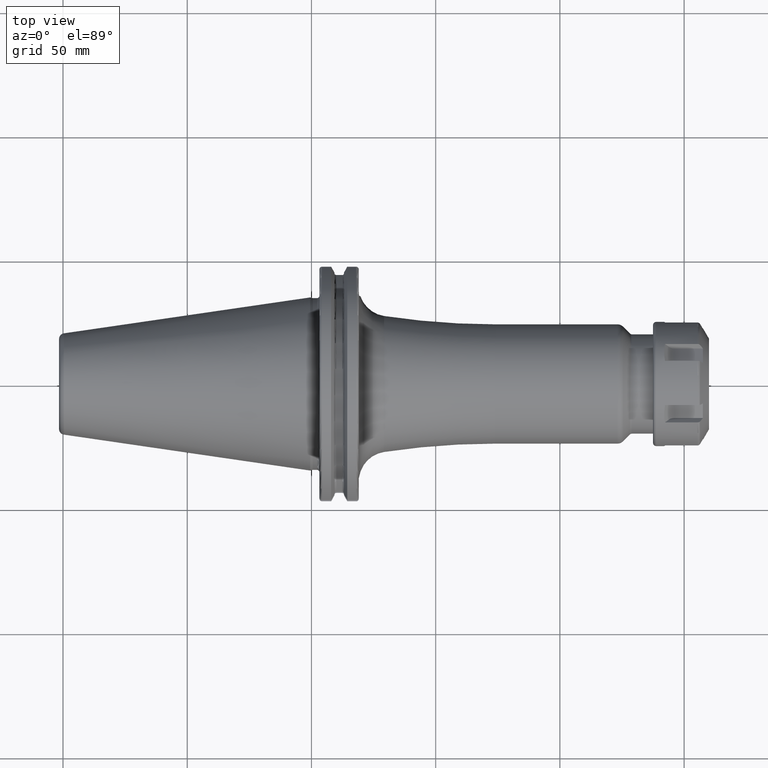
[diagram: clean part render]
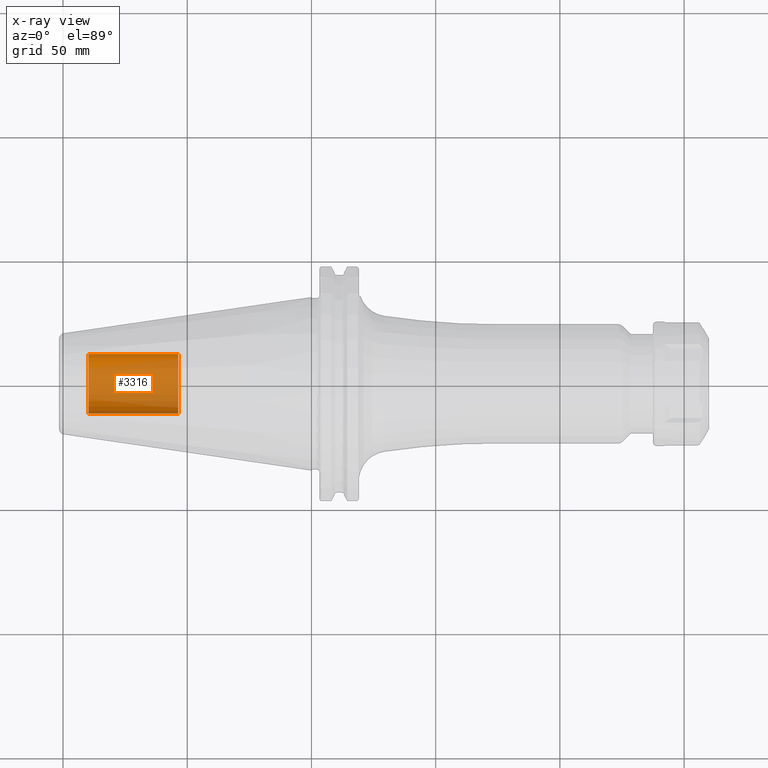
[diagram: x-ray — body ghosted, one internal face saturated and labeled with its STEP entity id]
A machine part, top view, then the same camera in x-ray: the body is ghosted and one INTERNAL B-rep face — a face not visible from any outside direction — is saturated and labeled: STEP entity #3316.
In plain terms, the highlighted cylindrical surface (edge-blend (fillet) strip) has radius 12.0032 mm, axis along (1, 0, 0).
Its self-contained STEP definition (entity closure, byte-faithful):
#3251=CARTESIAN_POINT('',(-8.985E1,0.E0,0.E0));
#3252=DIRECTION('',(-1.E0,0.E0,0.E0));
#3253=DIRECTION('',(0.E0,1.E0,0.E0));
#3254=AXIS2_PLACEMENT_3D('',#3251,#3252,#3253);
#3256=DIRECTION('',(1.E0,0.E0,0.E0));
#3257=VECTOR('',#3256,3.625E1);
#3258=CARTESIAN_POINT('',(-8.985E1,-1.200325E1,0.E0));
#3259=LINE('',#3258,#3257);
#3265=DIRECTION('',(1.E0,0.E0,0.E0));
#3266=VECTOR('',#3265,3.625E1);
#3267=CARTESIAN_POINT('',(-8.985E1,1.200325E1,0.E0));
#3268=LINE('',#3267,#3266);
#3274=CARTESIAN_POINT('',(-5.36E1,0.E0,0.E0));
#3275=DIRECTION('',(1.E0,0.E0,0.E0));
#3276=DIRECTION('',(0.E0,-1.E0,0.E0));
#3277=AXIS2_PLACEMENT_3D('',#3274,#3275,#3276);
#3289=CARTESIAN_POINT('',(-8.985E1,1.200325E1,0.E0));
#3290=CARTESIAN_POINT('',(-8.985E1,-1.200325E1,0.E0));
#3291=VERTEX_POINT('',#3289);
#3292=VERTEX_POINT('',#3290);
#3293=CARTESIAN_POINT('',(-5.36E1,1.200325E1,0.E0));
#3294=CARTESIAN_POINT('',(-5.36E1,-1.200325E1,0.E0));
#3295=VERTEX_POINT('',#3293);
#3296=VERTEX_POINT('',#3294);
#3301=CARTESIAN_POINT('',(-8.985E1,0.E0,0.E0));
#3302=DIRECTION('',(1.E0,0.E0,0.E0));
#3303=DIRECTION('',(0.E0,1.E0,0.E0));
#3304=AXIS2_PLACEMENT_3D('',#3301,#3302,#3303);
#3305=CYLINDRICAL_SURFACE('',#3304,1.200325E1);
#3307=ORIENTED_EDGE('',*,*,#3306,.T.);
#3309=ORIENTED_EDGE('',*,*,#3308,.T.);
#3311=ORIENTED_EDGE('',*,*,#3310,.T.);
#3313=ORIENTED_EDGE('',*,*,#3312,.F.);
#3314=EDGE_LOOP('',(#3307,#3309,#3311,#3313));
#3315=FACE_OUTER_BOUND('',#3314,.F.);
#3316=ADVANCED_FACE('',(#3315),#3305,.T.);
#3255=CIRCLE('',#3254,1.200325E1);
#3278=CIRCLE('',#3277,1.200325E1);
#3306=EDGE_CURVE('',#3291,#3292,#3255,.T.);
#3308=EDGE_CURVE('',#3292,#3296,#3259,.T.);
#3310=EDGE_CURVE('',#3296,#3295,#3278,.T.);
#3312=EDGE_CURVE('',#3291,#3295,#3268,.T.);